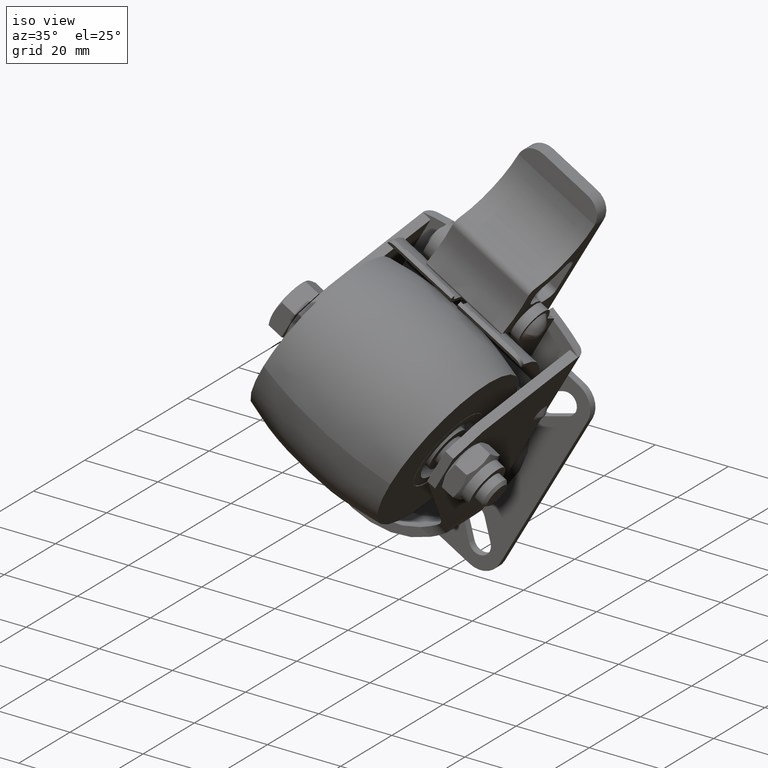
[diagram: clean part render]
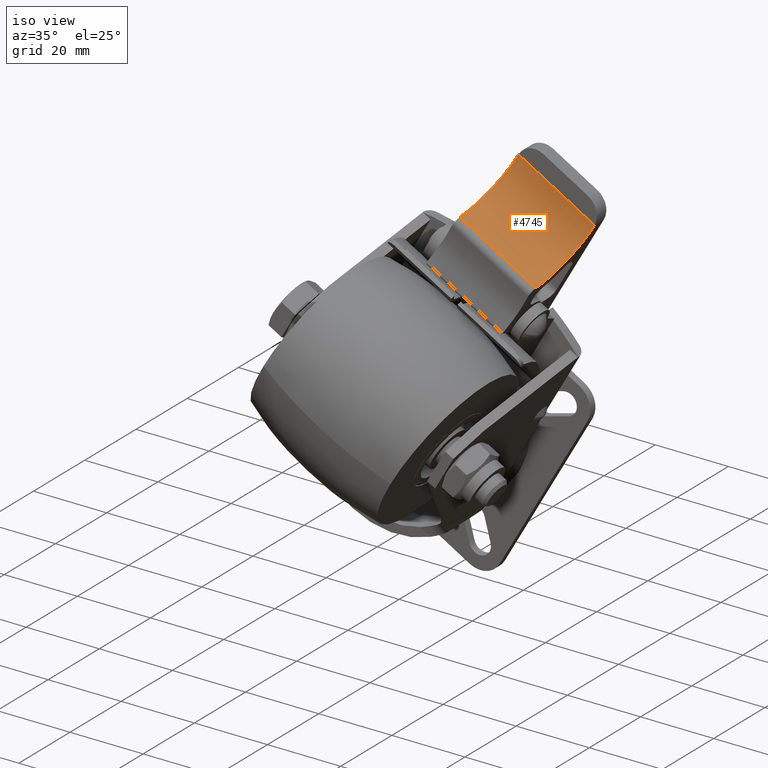
[diagram: same view with one face highlighted and labeled with its STEP entity id]
A machine part, iso view. The second image highlights one B-rep face of the part: STEP entity #4745.
In plain terms, the highlighted cylindrical surface (partial cylindrical patch) has radius 15 mm, axis along (0.866, -0, -0.5).
Its self-contained STEP definition (entity closure, byte-faithful):
#648=FACE_OUTER_BOUND('',#1028,.T.);
#1028=EDGE_LOOP('',(#4112,#4113,#4114,#4115));
#1285=CIRCLE('',#5205,15.);
#1303=CIRCLE('',#5237,15.);
#1576=LINE('',#8802,#1850);
#1579=LINE('',#8807,#1853);
#1850=VECTOR('',#6459,24.);
#1853=VECTOR('',#6466,24.);
#2321=VERTEX_POINT('',#8658);
#2327=VERTEX_POINT('',#8670);
#2353=VERTEX_POINT('',#8749);
#2354=VERTEX_POINT('',#8750);
#2904=EDGE_CURVE('',#2327,#2321,#1285,.T.);
#2942=EDGE_CURVE('',#2353,#2354,#1303,.F.);
#2968=EDGE_CURVE('',#2353,#2321,#1576,.F.);
#2971=EDGE_CURVE('',#2327,#2354,#1579,.F.);
#4112=ORIENTED_EDGE('',*,*,#2968,.T.);
#4113=ORIENTED_EDGE('',*,*,#2904,.F.);
#4114=ORIENTED_EDGE('',*,*,#2971,.T.);
#4115=ORIENTED_EDGE('',*,*,#2942,.F.);
#4498=CYLINDRICAL_SURFACE('',#5261,15.);
#4745=ADVANCED_FACE('',(#648),#4498,.F.);
#5205=AXIS2_PLACEMENT_3D('',#8672,#6316,#6317);
#5237=AXIS2_PLACEMENT_3D('',#8751,#6400,#6401);
#5261=AXIS2_PLACEMENT_3D('',#8806,#6464,#6465);
#6316=DIRECTION('center_axis',(0.,0.,1.));
#6317=DIRECTION('ref_axis',(-1.,0.,0.));
#6400=DIRECTION('center_axis',(0.,0.,1.));
#6401=DIRECTION('ref_axis',(-1.,0.,0.));
#6459=DIRECTION('',(0.,0.,1.));
#6464=DIRECTION('center_axis',(0.,0.,-1.));
#6465=DIRECTION('ref_axis',(-1.,0.,0.));
#6466=DIRECTION('',(0.,0.,-1.));
#8658=CARTESIAN_POINT('',(12.2396168652,-16.3295899728,-12.));
#8670=CARTESIAN_POINT('',(27.,-4.,-12.));
#8672=CARTESIAN_POINT('Origin',(27.,-19.,-12.));
#8749=CARTESIAN_POINT('',(12.2396168652,-16.3295899728,12.));
#8750=CARTESIAN_POINT('',(27.,-4.,12.));
#8751=CARTESIAN_POINT('Origin',(27.,-19.,12.));
#8802=CARTESIAN_POINT('',(12.2396168652,-16.3295899728,0.));
#8806=CARTESIAN_POINT('Origin',(27.,-19.,0.));
#8807=CARTESIAN_POINT('',(27.,-4.,0.));